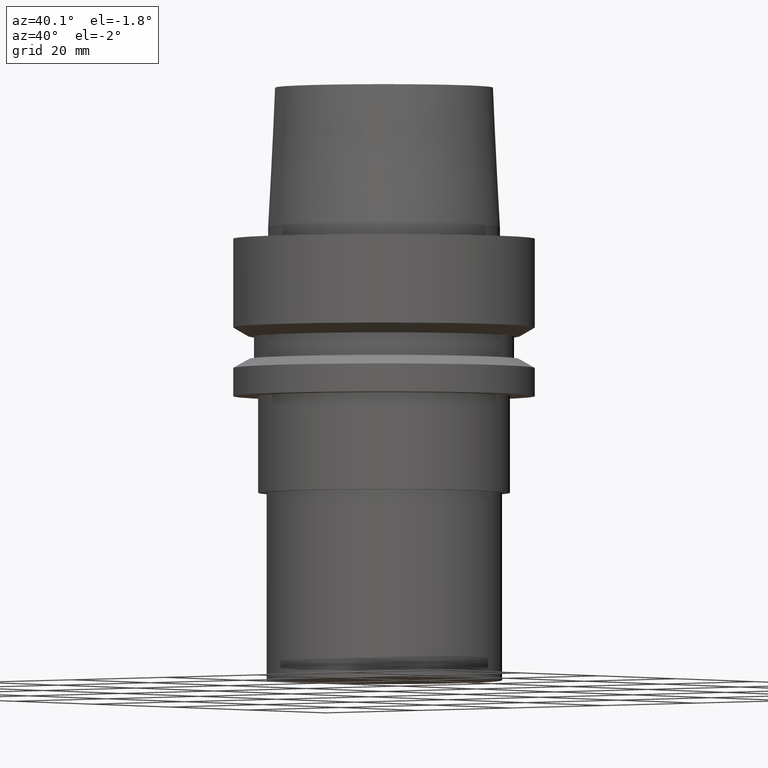
[diagram: clean part render]
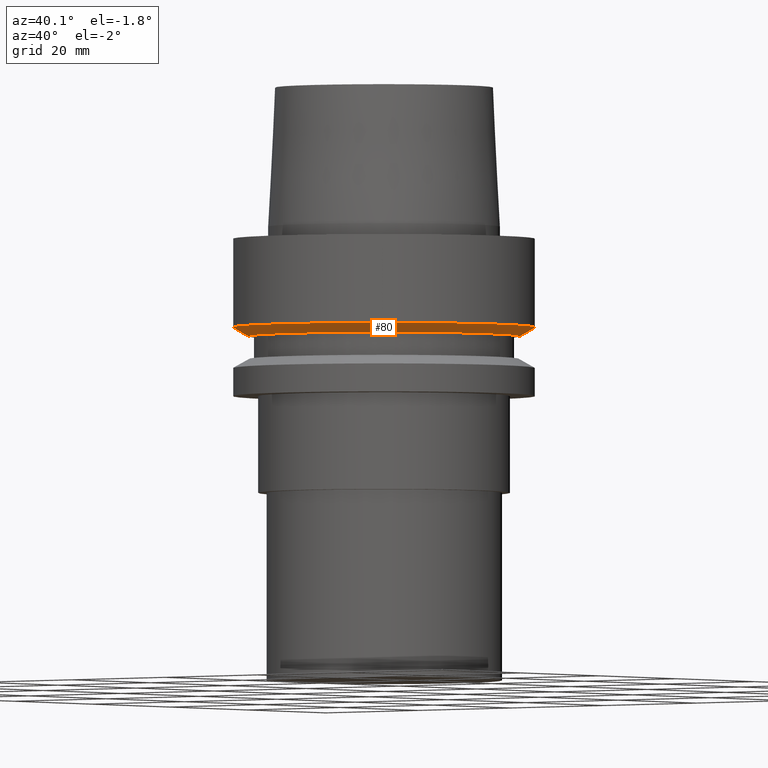
[diagram: same view with one face highlighted and labeled with its STEP entity id]
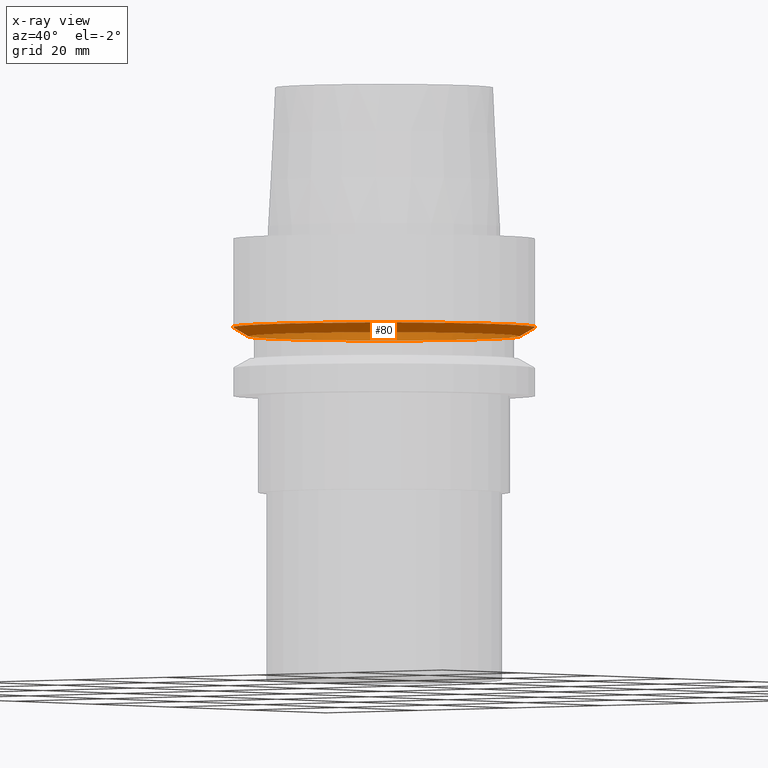
[diagram: x-ray of the same camera — body ghosted, the highlighted face saturated]
A machine part, auxiliary view. The second image highlights one B-rep face of the part: STEP entity #80.
The next image is the same camera in x-ray: the body ghosted, the highlighted face saturated — about 39% of this face is hidden behind the body in this view.
In plain terms, the highlighted conical surface has half-angle 60 deg.
Its self-contained STEP definition (entity closure, byte-faithful):
#80=ADVANCED_FACE('',(#106,#107),#108,.T.);
#106=FACE_BOUND('',#152,.T.);
#107=FACE_BOUND('',#153,.T.);
#108=CONICAL_SURFACE('',#154,23.69879763,1.04719755326565);
#152=EDGE_LOOP('',(#208));
#153=EDGE_LOOP('',(#209));
#154=AXIS2_PLACEMENT_3D('',#210,#211,#212);
#208=ORIENTED_EDGE('',*,*,#267,.F.);
#209=ORIENTED_EDGE('',*,*,#266,.T.);
#210=CARTESIAN_POINT('',(9.41370714892619E-016,1.88274142978524E-015,-15.373750465));
#211=DIRECTION('',(-6.12323399573676E-017,-1.22464679914735E-016,1.0));
#212=DIRECTION('',(-1.23259516440783E-032,1.0,1.22464679914735E-016));
#266=EDGE_CURVE('',#285,#285,#286,.T.);
#267=EDGE_CURVE('',#287,#287,#288,.T.);
#285=VERTEX_POINT('',#315);
#286=CIRCLE('',#316,25.0);
#287=VERTEX_POINT('',#317);
#288=CIRCLE('',#318,22.39759526);
#315=CARTESIAN_POINT('',(8.95369947972684E-016,25.0,-14.62250093));
#316=AXIS2_PLACEMENT_3D('',#349,#350,#351);
#317=CARTESIAN_POINT('',(9.87371481812553E-016,22.39759526,-16.125));
#318=AXIS2_PLACEMENT_3D('',#352,#353,#354);
#349=CARTESIAN_POINT('',(8.95369947972685E-016,1.79073989594537E-015,-14.62250093));
#350=DIRECTION('',(6.12323399573677E-017,1.22464679914735E-016,-1.0));
#351=DIRECTION('',(-1.23259516440783E-032,1.0,1.22464679914735E-016));
#352=CARTESIAN_POINT('',(9.87371481812554E-016,1.97474296362511E-015,-16.125));
#353=DIRECTION('',(6.12323399573677E-017,1.22464679914735E-016,-1.0));
#354=DIRECTION('',(-1.23259516440783E-032,1.0,1.22464679914735E-016));